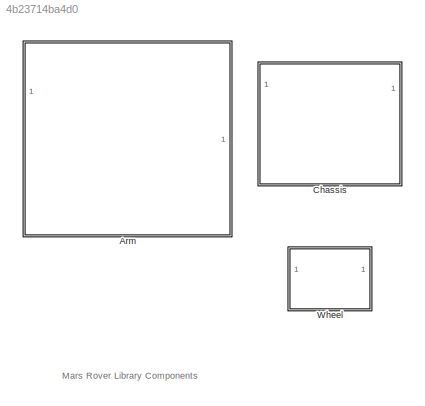
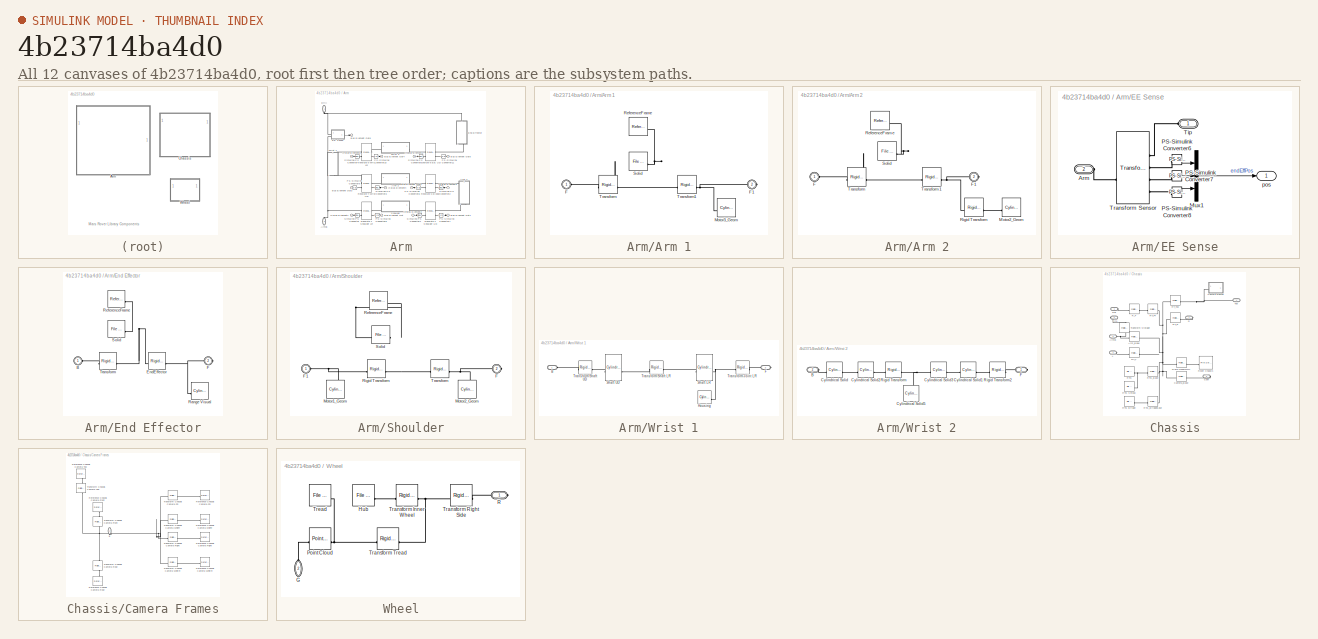
[diagram: thumbnail index - all 12 canvases of the model, root first then tree order]
MODEL slx_4b23714ba4d0
KIND library
CONFIG AbsTol = auto
CONFIG EnableMultiTasking = off
CONFIG FixedStep = auto
CONFIG MaxStep = auto
CONFIG MinStep = auto
CONFIG RelTol = 1e-3
CONFIG SampleTimeConstraint = Unconstrained
CONFIG SolverName = VariableStepAuto
CONFIG StartTime = 0.0
CONFIG StopTime = 10.0
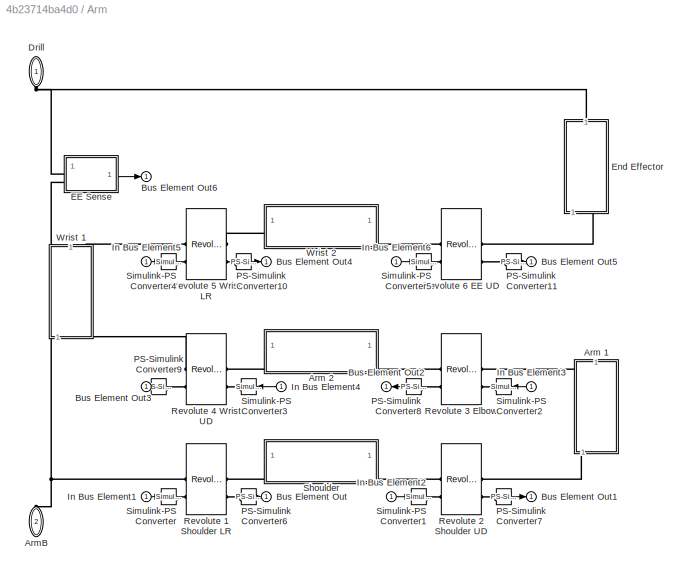
BLOCK [SubSystem] Arm
BLOCK [SubSystem] Arm/Arm 1
  NameLocation = left
BLOCK [PMIOPort] Arm/Arm 1/F
  Side = Left
BLOCK [PMIOPort] Arm/Arm 1/F1
  Port = 2
  Side = Right
BLOCK [Reference] Arm/Arm 1/Motor3_Geom  REF=sm_lib/Body Elements/Cylindrical Solid
  SourceBlock = sm_lib/Body Elements/Cylindrical Solid
  SourceType = Cylindrical Solid
BLOCK [Reference] Arm/Arm 1/ReferenceFrame  REF=sm_lib/Frames and
Transforms/Reference
Frame
  SourceBlock = sm_lib/Frames and\nTransforms/Reference\nFrame
  SourceType = Reference\nFrame
BLOCK [Reference] Arm/Arm 1/Solid  REF=sm_lib/Body Elements/File Solid
  SourceBlock = sm_lib/Body Elements/File Solid
  SourceType = File Solid
BLOCK [Reference] Arm/Arm 1/Transform  REF=sm_lib/Frames and
Transforms/Rigid
Transform
  SourceBlock = sm_lib/Frames and\nTransforms/Rigid\nTransform
  SourceType = Rigid\nTransform
BLOCK [Reference] Arm/Arm 1/Transform1  REF=sm_lib/Frames and
Transforms/Rigid
Transform
  SourceBlock = sm_lib/Frames and\nTransforms/Rigid\nTransform
  SourceType = Rigid\nTransform
BLOCK [SubSystem] Arm/Arm 2
  NameLocation = top
BLOCK [PMIOPort] Arm/Arm 2/F
  Side = Left
BLOCK [PMIOPort] Arm/Arm 2/F1
  Port = 2
  Side = Right
BLOCK [Reference] Arm/Arm 2/Motor2_Geom  REF=sm_lib/Body Elements/Cylindrical Solid
  SourceBlock = sm_lib/Body Elements/Cylindrical Solid
  SourceType = Cylindrical Solid
BLOCK [Reference] Arm/Arm 2/ReferenceFrame  REF=sm_lib/Frames and
Transforms/Reference
Frame
  SourceBlock = sm_lib/Frames and\nTransforms/Reference\nFrame
  SourceType = Reference\nFrame
BLOCK [Reference] Arm/Arm 2/Rigid Transform  REF=sm_lib/Frames and
Transforms/Rigid
Transform
  SourceBlock = sm_lib/Frames and\nTransforms/Rigid\nTransform
  SourceType = Rigid\nTransform
BLOCK [Reference] Arm/Arm 2/Solid  REF=sm_lib/Body Elements/File Solid
  SourceBlock = sm_lib/Body Elements/File Solid
  SourceType = File Solid
BLOCK [Reference] Arm/Arm 2/Transform  REF=sm_lib/Frames and
Transforms/Rigid
Transform
  SourceBlock = sm_lib/Frames and\nTransforms/Rigid\nTransform
  SourceType = Rigid\nTransform
BLOCK [Reference] Arm/Arm 2/Transform1  REF=sm_lib/Frames and
Transforms/Rigid
Transform
  SourceBlock = sm_lib/Frames and\nTransforms/Rigid\nTransform
  SourceType = Rigid\nTransform
BLOCK [PMIOPort] Arm/ArmB
  NameLocation = right
  Port = 2
  Side = Left
BLOCK [Outport] Arm/Bus Element Out
BLOCK [Outport] Arm/Bus Element Out1
BLOCK [Outport] Arm/Bus Element Out2
BLOCK [Outport] Arm/Bus Element Out3
BLOCK [Outport] Arm/Bus Element Out4
BLOCK [Outport] Arm/Bus Element Out5
BLOCK [Outport] Arm/Bus Element Out6
BLOCK [PMIOPort] Arm/Drill
  NameLocation = right
  Side = Left
BLOCK [SubSystem] Arm/EE Sense
BLOCK [PMIOPort] Arm/EE Sense/Arm
  Port = 2
  Side = Left
BLOCK [Mux] Arm/EE Sense/Mux1
  DisplayOption = bar
  Inputs = 3
BLOCK [Reference] Arm/EE Sense/PS-Simulink Converter6  REF=nesl_utility/PS-Simulink
Converter
  SourceBlock = nesl_utility/PS-Simulink\nConverter
  SourceType = PS-Simulink\nConverter
BLOCK [Reference] Arm/EE Sense/PS-Simulink Converter7  REF=nesl_utility/PS-Simulink
Converter
  SourceBlock = nesl_utility/PS-Simulink\nConverter
  SourceType = PS-Simulink\nConverter
BLOCK [Reference] Arm/EE Sense/PS-Simulink Converter8  REF=nesl_utility/PS-Simulink
Converter
  SourceBlock = nesl_utility/PS-Simulink\nConverter
  SourceType = PS-Simulink\nConverter
BLOCK [PMIOPort] Arm/EE Sense/Tip
  Side = Left
BLOCK [Reference] Arm/EE Sense/Transform Sensor  REF=sm_lib/Frames and
Transforms/Transform
Sensor
  SourceBlock = sm_lib/Frames and\nTransforms/Transform\nSensor
  SourceType = Transform\nSensor
BLOCK [Outport] Arm/EE Sense/pos
BLOCK [SubSystem] Arm/End Effector
  NameLocation = left
BLOCK [PMIOPort] Arm/End Effector/B
  Side = Left
BLOCK [Reference] Arm/End Effector/EndEffector  REF=sm_lib/Frames and
Transforms/Rigid
Transform
  SourceBlock = sm_lib/Frames and\nTransforms/Rigid\nTransform
  SourceType = Rigid\nTransform
BLOCK [PMIOPort] Arm/End Effector/F
  Port = 2
  Side = Right
BLOCK [Reference] Arm/End Effector/Range Visual  REF=sm_lib/Body Elements/Cylindrical Solid
  SourceBlock = sm_lib/Body Elements/Cylindrical Solid
  SourceType = Cylindrical Solid
BLOCK [Reference] Arm/End Effector/ReferenceFrame  REF=sm_lib/Frames and
Transforms/Reference
Frame
  SourceBlock = sm_lib/Frames and\nTransforms/Reference\nFrame
  SourceType = Reference\nFrame
BLOCK [Reference] Arm/End Effector/Solid  REF=sm_lib/Body Elements/File Solid
  SourceBlock = sm_lib/Body Elements/File Solid
  SourceType = File Solid
BLOCK [Reference] Arm/End Effector/Transform  REF=sm_lib/Frames and
Transforms/Rigid
Transform
  SourceBlock = sm_lib/Frames and\nTransforms/Rigid\nTransform
  SourceType = Rigid\nTransform
BLOCK [Inport] Arm/In Bus Element1
BLOCK [Inport] Arm/In Bus Element2
BLOCK [Inport] Arm/In Bus Element3
BLOCK [Inport] Arm/In Bus Element4
BLOCK [Inport] Arm/In Bus Element5
BLOCK [Inport] Arm/In Bus Element6
BLOCK [Reference] Arm/PS-Simulink Converter10  REF=nesl_utility/PS-Simulink
Converter
  SourceBlock = nesl_utility/PS-Simulink\nConverter
  SourceType = PS-Simulink\nConverter
BLOCK [Reference] Arm/PS-Simulink Converter11  REF=nesl_utility/PS-Simulink
Converter
  SourceBlock = nesl_utility/PS-Simulink\nConverter
  SourceType = PS-Simulink\nConverter
BLOCK [Reference] Arm/PS-Simulink Converter6  REF=nesl_utility/PS-Simulink
Converter
  SourceBlock = nesl_utility/PS-Simulink\nConverter
  SourceType = PS-Simulink\nConverter
BLOCK [Reference] Arm/PS-Simulink Converter7  REF=nesl_utility/PS-Simulink
Converter
  SourceBlock = nesl_utility/PS-Simulink\nConverter
  SourceType = PS-Simulink\nConverter
BLOCK [Reference] Arm/PS-Simulink Converter8  REF=nesl_utility/PS-Simulink
Converter
  SourceBlock = nesl_utility/PS-Simulink\nConverter
  SourceType = PS-Simulink\nConverter
BLOCK [Reference] Arm/PS-Simulink Converter9  REF=nesl_utility/PS-Simulink
Converter
  NameLocation = top
  SourceBlock = nesl_utility/PS-Simulink\nConverter
  SourceType = PS-Simulink\nConverter
BLOCK [Reference] Arm/Revolute 1 Shoulder LR  REF=sm_lib/Joints/Revolute Joint
  SourceBlock = sm_lib/Joints/Revolute Joint
  SourceType = Revolute Joint
BLOCK [Reference] Arm/Revolute 2 Shoulder UD  REF=sm_lib/Joints/Revolute Joint
  SourceBlock = sm_lib/Joints/Revolute Joint
  SourceType = Revolute Joint
BLOCK [Reference] Arm/Revolute 3 Elbow  REF=sm_lib/Joints/Revolute Joint
  SourceBlock = sm_lib/Joints/Revolute Joint
  SourceType = Revolute Joint
BLOCK [Reference] Arm/Revolute 4 Wrist UD  REF=sm_lib/Joints/Revolute Joint
  SourceBlock = sm_lib/Joints/Revolute Joint
  SourceType = Revolute Joint
BLOCK [Reference] Arm/Revolute 5 Wrist LR  REF=sm_lib/Joints/Revolute Joint
  SourceBlock = sm_lib/Joints/Revolute Joint
  SourceType = Revolute Joint
BLOCK [Reference] Arm/Revolute 6 EE UD  REF=sm_lib/Joints/Revolute Joint
  SourceBlock = sm_lib/Joints/Revolute Joint
  SourceType = Revolute Joint
BLOCK [SubSystem] Arm/Shoulder
  NameLocation = top
BLOCK [PMIOPort] Arm/Shoulder/F
  Port = 2
  Side = Right
BLOCK [PMIOPort] Arm/Shoulder/F1
  Side = Left
BLOCK [Reference] Arm/Shoulder/Motor1_Geom  REF=sm_lib/Body Elements/Cylindrical Solid
  NameLocation = right
  SourceBlock = sm_lib/Body Elements/Cylindrical Solid
  SourceType = Cylindrical Solid
BLOCK [Reference] Arm/Shoulder/Motor2_Geom  REF=sm_lib/Body Elements/Cylindrical Solid
  NameLocation = right
  SourceBlock = sm_lib/Body Elements/Cylindrical Solid
  SourceType = Cylindrical Solid
BLOCK [Reference] Arm/Shoulder/ReferenceFrame  REF=sm_lib/Frames and
Transforms/Reference
Frame
  SourceBlock = sm_lib/Frames and\nTransforms/Reference\nFrame
  SourceType = Reference\nFrame
BLOCK [Reference] Arm/Shoulder/Rigid Transform  REF=sm_lib/Frames and
Transforms/Rigid
Transform
  SourceBlock = sm_lib/Frames and\nTransforms/Rigid\nTransform
  SourceType = Rigid\nTransform
BLOCK [Reference] Arm/Shoulder/Solid  REF=sm_lib/Body Elements/File Solid
  SourceBlock = sm_lib/Body Elements/File Solid
  SourceType = File Solid
BLOCK [Reference] Arm/Shoulder/Transform  REF=sm_lib/Frames and
Transforms/Rigid
Transform
  SourceBlock = sm_lib/Frames and\nTransforms/Rigid\nTransform
  SourceType = Rigid\nTransform
BLOCK [Reference] Arm/Simulink-PS Converter  REF=nesl_utility/Simulink-PS
Converter
  SourceBlock = nesl_utility/Simulink-PS\nConverter
  SourceType = Simulink-PS\nConverter
BLOCK [Reference] Arm/Simulink-PS Converter1  REF=nesl_utility/Simulink-PS
Converter
  SourceBlock = nesl_utility/Simulink-PS\nConverter
  SourceType = Simulink-PS\nConverter
BLOCK [Reference] Arm/Simulink-PS Converter2  REF=nesl_utility/Simulink-PS
Converter
  SourceBlock = nesl_utility/Simulink-PS\nConverter
  SourceType = Simulink-PS\nConverter
BLOCK [Reference] Arm/Simulink-PS Converter3  REF=nesl_utility/Simulink-PS
Converter
  NameLocation = top
  SourceBlock = nesl_utility/Simulink-PS\nConverter
  SourceType = Simulink-PS\nConverter
BLOCK [Reference] Arm/Simulink-PS Converter4  REF=nesl_utility/Simulink-PS
Converter
  SourceBlock = nesl_utility/Simulink-PS\nConverter
  SourceType = Simulink-PS\nConverter
BLOCK [Reference] Arm/Simulink-PS Converter5  REF=nesl_utility/Simulink-PS
Converter
  SourceBlock = nesl_utility/Simulink-PS\nConverter
  SourceType = Simulink-PS\nConverter
BLOCK [SubSystem] Arm/Wrist 1
  NameLocation = right
BLOCK [PMIOPort] Arm/Wrist 1/B
  Side = Left
BLOCK [PMIOPort] Arm/Wrist 1/F
  Port = 2
  Side = Right
BLOCK [Reference] Arm/Wrist 1/Housing  REF=sm_lib/Body Elements/Cylindrical Solid
  SourceBlock = sm_lib/Body Elements/Cylindrical Solid
  SourceType = Cylindrical Solid
BLOCK [Reference] Arm/Wrist 1/Shaft LR  REF=sm_lib/Body Elements/Cylindrical Solid
  SourceBlock = sm_lib/Body Elements/Cylindrical Solid
  SourceType = Cylindrical Solid
BLOCK [Reference] Arm/Wrist 1/Shaft UD  REF=sm_lib/Body Elements/Cylindrical Solid
  SourceBlock = sm_lib/Body Elements/Cylindrical Solid
  SourceType = Cylindrical Solid
BLOCK [Reference] Arm/Wrist 1/Transform Joint LR  REF=sm_lib/Frames and
Transforms/Rigid
Transform
  SourceBlock = sm_lib/Frames and\nTransforms/Rigid\nTransform
  SourceType = Rigid\nTransform
BLOCK [Reference] Arm/Wrist 1/Transform Shaft LR   REF=sm_lib/Frames and
Transforms/Rigid
Transform
  SourceBlock = sm_lib/Frames and\nTransforms/Rigid\nTransform
  SourceType = Rigid\nTransform
BLOCK [Reference] Arm/Wrist 1/Transform Shaft UD  REF=sm_lib/Frames and
Transforms/Rigid
Transform
  SourceBlock = sm_lib/Frames and\nTransforms/Rigid\nTransform
  SourceType = Rigid\nTransform
BLOCK [SubSystem] Arm/Wrist 2
  NameLocation = top
BLOCK [PMIOPort] Arm/Wrist 2/B
  Port = 2
  Side = Left
BLOCK [Reference] Arm/Wrist 2/Cylindrical Solid  REF=sm_lib/Body Elements/Cylindrical Solid
  SourceBlock = sm_lib/Body Elements/Cylindrical Solid
  SourceType = Cylindrical Solid
BLOCK [Reference] Arm/Wrist 2/Cylindrical Solid1  REF=sm_lib/Body Elements/Cylindrical Solid
  SourceBlock = sm_lib/Body Elements/Cylindrical Solid
  SourceType = Cylindrical Solid
BLOCK [Reference] Arm/Wrist 2/Cylindrical Solid2  REF=sm_lib/Body Elements/Cylindrical Solid
  SourceBlock = sm_lib/Body Elements/Cylindrical Solid
  SourceType = Cylindrical Solid
BLOCK [Reference] Arm/Wrist 2/Cylindrical Solid3  REF=sm_lib/Body Elements/Cylindrical Solid
  SourceBlock = sm_lib/Body Elements/Cylindrical Solid
  SourceType = Cylindrical Solid
BLOCK [Reference] Arm/Wrist 2/Cylindrical Solid5  REF=sm_lib/Body Elements/Cylindrical Solid
  NameLocation = left
  SourceBlock = sm_lib/Body Elements/Cylindrical Solid
  SourceType = Cylindrical Solid
BLOCK [PMIOPort] Arm/Wrist 2/F
  Side = Right
BLOCK [Reference] Arm/Wrist 2/Rigid Transform  REF=sm_lib/Frames and
Transforms/Rigid
Transform
  SourceBlock = sm_lib/Frames and\nTransforms/Rigid\nTransform
  SourceType = Rigid\nTransform
BLOCK [Reference] Arm/Wrist 2/Rigid Transform2  REF=sm_lib/Frames and
Transforms/Rigid
Transform
  SourceBlock = sm_lib/Frames and\nTransforms/Rigid\nTransform
  SourceType = Rigid\nTransform
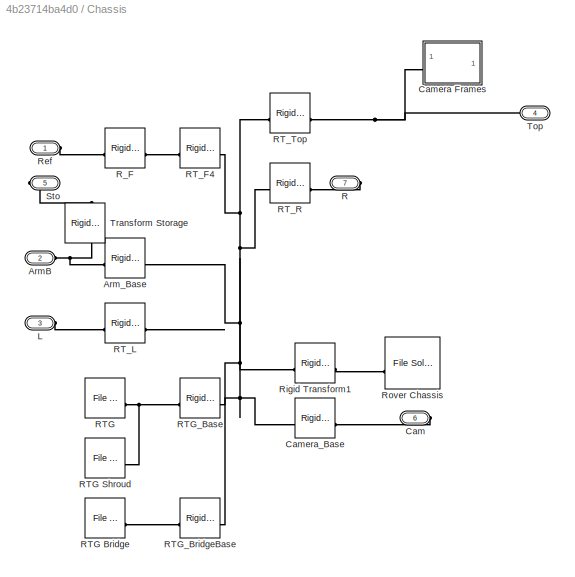
BLOCK [SubSystem] Chassis
  PortSchema = {"entries":[{"content":{"sides":[{"content":{"connectorIds":["LConn1","LConn2","LConn3"]},"type":"ConnectorPlacement.EquallySpacedRectSide","uuid":"18f29509-40f0-486f-8814-4aaf0f3db205"},{"content":{"connectorIds":["RConn1","RConn2","RConn3"],"side":"RIGHT"},"type":"ConnectorPlacement.EquallySpacedRectSide","uuid":"2e7bb58d-7039-4a67-8374-bf875ba97ad5"},{"content":{"connectorIds":["LConn4"],"side"...<+289ch>
BLOCK [PMIOPort] Chassis/ArmB
  Port = 2
  Side = Left
BLOCK [Reference] Chassis/Arm_Base  REF=sm_lib/Frames and
Transforms/Rigid
Transform
  SourceBlock = sm_lib/Frames and\nTransforms/Rigid\nTransform
  SourceType = Rigid\nTransform
BLOCK [PMIOPort] Chassis/Cam
  Port = 6
  Side = Right
BLOCK [SubSystem] Chassis/Camera Frames
BLOCK [PMIOPort] Chassis/Camera Frames/B
  NameLocation = left
  Side = Left
BLOCK [Reference] Chassis/Camera Frames/Reference Chassis Camera FR  REF=sm_lib/Frames and
Transforms/Reference
Frame
  SourceBlock = sm_lib/Frames and\nTransforms/Reference\nFrame
  SourceType = Reference\nFrame
BLOCK [Reference] Chassis/Camera Frames/Reference Chassis Camera Front  REF=sm_lib/Frames and
Transforms/Reference
Frame
  NameLocation = right
  SourceBlock = sm_lib/Frames and\nTransforms/Reference\nFrame
  SourceType = Reference\nFrame
BLOCK [Reference] Chassis/Camera Frames/Reference Chassis Camera Rear  REF=sm_lib/Frames and
Transforms/Reference
Frame
  NameLocation = right
  SourceBlock = sm_lib/Frames and\nTransforms/Reference\nFrame
  SourceType = Reference\nFrame
BLOCK [Reference] Chassis/Camera Frames/Reference Chassis Camera Right  REF=sm_lib/Frames and
Transforms/Reference
Frame
  SourceBlock = sm_lib/Frames and\nTransforms/Reference\nFrame
  SourceType = Reference\nFrame
BLOCK [Reference] Chassis/Camera Frames/Reference Chassis Camera Top  REF=sm_lib/Frames and
Transforms/Reference
Frame
  NameLocation = right
  SourceBlock = sm_lib/Frames and\nTransforms/Reference\nFrame
  SourceType = Reference\nFrame
BLOCK [Reference] Chassis/Camera Frames/Reference Chassis Camera WhlFR  REF=sm_lib/Frames and
Transforms/Reference
Frame
  SourceBlock = sm_lib/Frames and\nTransforms/Reference\nFrame
  SourceType = Reference\nFrame
BLOCK [Reference] Chassis/Camera Frames/Reference Chassis Camera WhlRR  REF=sm_lib/Frames and
Transforms/Reference
Frame
  SourceBlock = sm_lib/Frames and\nTransforms/Reference\nFrame
  SourceType = Reference\nFrame
BLOCK [Reference] Chassis/Camera Frames/Transform Chassis Camera FR  REF=sm_lib/Frames and
Transforms/Rigid
Transform
  SourceBlock = sm_lib/Frames and\nTransforms/Rigid\nTransform
  SourceType = Rigid\nTransform
BLOCK [Reference] Chassis/Camera Frames/Transform Chassis Camera Front  REF=sm_lib/Frames and
Transforms/Rigid
Transform
  NameLocation = right
  SourceBlock = sm_lib/Frames and\nTransforms/Rigid\nTransform
  SourceType = Rigid\nTransform
BLOCK [Reference] Chassis/Camera Frames/Transform Chassis Camera Rear  REF=sm_lib/Frames and
Transforms/Rigid
Transform
  NameLocation = right
  SourceBlock = sm_lib/Frames and\nTransforms/Rigid\nTransform
  SourceType = Rigid\nTransform
BLOCK [Reference] Chassis/Camera Frames/Transform Chassis Camera Right   REF=sm_lib/Frames and
Transforms/Rigid
Transform
  SourceBlock = sm_lib/Frames and\nTransforms/Rigid\nTransform
  SourceType = Rigid\nTransform
BLOCK [Reference] Chassis/Camera Frames/Transform Chassis Camera Top  REF=sm_lib/Frames and
Transforms/Rigid
Transform
  NameLocation = right
  SourceBlock = sm_lib/Frames and\nTransforms/Rigid\nTransform
  SourceType = Rigid\nTransform
BLOCK [Reference] Chassis/Camera Frames/Transform Chassis Camera WhlFR  REF=sm_lib/Frames and
Transforms/Rigid
Transform
  SourceBlock = sm_lib/Frames and\nTransforms/Rigid\nTransform
  SourceType = Rigid\nTransform
BLOCK [Reference] Chassis/Camera Frames/Transform Chassis Camera WhlRR  REF=sm_lib/Frames and
Transforms/Rigid
Transform
  SourceBlock = sm_lib/Frames and\nTransforms/Rigid\nTransform
  SourceType = Rigid\nTransform
BLOCK [Reference] Chassis/Camera_Base  REF=sm_lib/Frames and
Transforms/Rigid
Transform
  SourceBlock = sm_lib/Frames and\nTransforms/Rigid\nTransform
  SourceType = Rigid\nTransform
BLOCK [PMIOPort] Chassis/L
  NameLocation = top
  Port = 3
  Side = Left
BLOCK [PMIOPort] Chassis/R
  Port = 7
  Side = Right
BLOCK [Reference] Chassis/RTG  REF=sm_lib/Body Elements/File Solid
  SourceBlock = sm_lib/Body Elements/File Solid
  SourceType = File Solid
BLOCK [Reference] Chassis/RTG Bridge  REF=sm_lib/Body Elements/File Solid
  SourceBlock = sm_lib/Body Elements/File Solid
  SourceType = File Solid
BLOCK [Reference] Chassis/RTG Shroud  REF=sm_lib/Body Elements/File Solid
  SourceBlock = sm_lib/Body Elements/File Solid
  SourceType = File Solid
BLOCK [Reference] Chassis/RTG_Base  REF=sm_lib/Frames and
Transforms/Rigid
Transform
  SourceBlock = sm_lib/Frames and\nTransforms/Rigid\nTransform
  SourceType = Rigid\nTransform
BLOCK [Reference] Chassis/RTG_BridgeBase  REF=sm_lib/Frames and
Transforms/Rigid
Transform
  SourceBlock = sm_lib/Frames and\nTransforms/Rigid\nTransform
  SourceType = Rigid\nTransform
BLOCK [Reference] Chassis/RT_F4  REF=sm_lib/Frames and
Transforms/Rigid
Transform
  SourceBlock = sm_lib/Frames and\nTransforms/Rigid\nTransform
  SourceType = Rigid\nTransform
BLOCK [Reference] Chassis/RT_L  REF=sm_lib/Frames and
Transforms/Rigid
Transform
  SourceBlock = sm_lib/Frames and\nTransforms/Rigid\nTransform
  SourceType = Rigid\nTransform
BLOCK [Reference] Chassis/RT_R  REF=sm_lib/Frames and
Transforms/Rigid
Transform
  SourceBlock = sm_lib/Frames and\nTransforms/Rigid\nTransform
  SourceType = Rigid\nTransform
BLOCK [Reference] Chassis/RT_Top  REF=sm_lib/Frames and
Transforms/Rigid
Transform
  SourceBlock = sm_lib/Frames and\nTransforms/Rigid\nTransform
  SourceType = Rigid\nTransform
BLOCK [Reference] Chassis/R_F  REF=sm_lib/Frames and
Transforms/Rigid
Transform
  SourceBlock = sm_lib/Frames and\nTransforms/Rigid\nTransform
  SourceType = Rigid\nTransform
BLOCK [PMIOPort] Chassis/Ref
  Side = Left
BLOCK [Reference] Chassis/Rigid Transform1  REF=sm_lib/Frames and
Transforms/Rigid
Transform
  NameLocation = top
  SourceBlock = sm_lib/Frames and\nTransforms/Rigid\nTransform
  SourceType = Rigid\nTransform
BLOCK [Reference] Chassis/Rover Chassis  REF=sm_lib/Body Elements/File Solid
  SourceBlock = sm_lib/Body Elements/File Solid
  SourceType = File Solid
BLOCK [PMIOPort] Chassis/Sto
  Port = 5
  Side = Right
BLOCK [PMIOPort] Chassis/Top
  Port = 4
  Side = Left
BLOCK [Reference] Chassis/Transform Storage  REF=sm_lib/Frames and
Transforms/Rigid
Transform
  NameLocation = left
  SourceBlock = sm_lib/Frames and\nTransforms/Rigid\nTransform
  SourceType = Rigid\nTransform
BLOCK [SubSystem] Wheel
BLOCK [PMIOPort] Wheel/G
  NameLocation = right
  Port = 2
  Side = Left
BLOCK [Reference] Wheel/Hub  REF=sm_lib/Body Elements/File Solid
  SourceBlock = sm_lib/Body Elements/File Solid
  SourceType = File Solid
BLOCK [Reference] Wheel/Point Cloud  REF=sm_lib/Curves and Surfaces/Point Cloud
  SourceBlock = sm_lib/Curves and Surfaces/Point Cloud
  SourceType = Point Cloud
BLOCK [PMIOPort] Wheel/R
  Side = Right
BLOCK [Reference] Wheel/Transform Inner Wheel  REF=sm_lib/Frames and
Transforms/Rigid
Transform
  SourceBlock = sm_lib/Frames and\nTransforms/Rigid\nTransform
  SourceType = Rigid\nTransform
BLOCK [Reference] Wheel/Transform Right Side  REF=sm_lib/Frames and
Transforms/Rigid
Transform
  SourceBlock = sm_lib/Frames and\nTransforms/Rigid\nTransform
  SourceType = Rigid\nTransform
BLOCK [Reference] Wheel/Transform Tread  REF=sm_lib/Frames and
Transforms/Rigid
Transform
  SourceBlock = sm_lib/Frames and\nTransforms/Rigid\nTransform
  SourceType = Rigid\nTransform
BLOCK [Reference] Wheel/Tread  REF=sm_lib/Body Elements/File Solid
  SourceBlock = sm_lib/Body Elements/File Solid
  SourceType = File Solid
ANNOTATION (root): Mars Rover Library Components
LINE Arm/EE Sense/Mux1:1 -> Arm/EE Sense/pos:1
LINE Arm/EE Sense/PS-Simulink Converter6:1 -> Arm/EE Sense/Mux1:1
LINE Arm/EE Sense/PS-Simulink Converter7:1 -> Arm/EE Sense/Mux1:2
LINE Arm/EE Sense/PS-Simulink Converter8:1 -> Arm/EE Sense/Mux1:3
LINE Arm/EE Sense:1 -> Arm/Bus Element Out6:1
LINE Arm/In Bus Element1:1 -> Arm/Simulink-PS Converter:1
LINE Arm/In Bus Element2:1 -> Arm/Simulink-PS Converter1:1
LINE Arm/In Bus Element3:1 -> Arm/Simulink-PS Converter2:1
LINE Arm/In Bus Element4:1 -> Arm/Simulink-PS Converter3:1
LINE Arm/In Bus Element5:1 -> Arm/Simulink-PS Converter4:1
LINE Arm/In Bus Element6:1 -> Arm/Simulink-PS Converter5:1
LINE Arm/PS-Simulink Converter10:1 -> Arm/Bus Element Out4:1
LINE Arm/PS-Simulink Converter11:1 -> Arm/Bus Element Out5:1
LINE Arm/PS-Simulink Converter6:1 -> Arm/Bus Element Out:1
LINE Arm/PS-Simulink Converter7:1 -> Arm/Bus Element Out1:1
LINE Arm/PS-Simulink Converter8:1 -> Arm/Bus Element Out2:1
LINE Arm/PS-Simulink Converter9:1 -> Arm/Bus Element Out3:1
PNET net1: Arm/Arm 1/F1:RConn1 -- Arm/Arm 1/Motor3_Geom:LConn1 -- Arm/Arm 1/Transform1:RConn1
PLINE Arm/Arm 1/F:RConn1 -- Arm/Arm 1/Transform:RConn1
PNET net2: Arm/Arm 1/ReferenceFrame:RConn1 -- Arm/Arm 1/Solid:RConn1 -- Arm/Arm 1/Transform1:LConn1 -- Arm/Arm 1/Transform:LConn1
PLINE Arm/Arm 1:LConn1 -- Arm/Revolute 2 Shoulder UD:RConn1
PLINE Arm/Arm 1:RConn1 -- Arm/Revolute 3 Elbow:LConn1
PNET net3: Arm/Arm 2/F1:RConn1 -- Arm/Arm 2/Rigid Transform:RConn1 -- Arm/Arm 2/Transform1:RConn1
PLINE Arm/Arm 2/F:RConn1 -- Arm/Arm 2/Transform:RConn1
PLINE Arm/Arm 2/Motor2_Geom:LConn1 -- Arm/Arm 2/Rigid Transform:LConn1
PNET net4: Arm/Arm 2/ReferenceFrame:RConn1 -- Arm/Arm 2/Solid:RConn1 -- Arm/Arm 2/Transform1:LConn1 -- Arm/Arm 2/Transform:LConn1
PLINE Arm/Arm 2:LConn1 -- Arm/Revolute 3 Elbow:RConn1
PLINE Arm/Arm 2:RConn1 -- Arm/Revolute 4 Wrist UD:LConn1
PNET net5: Arm/ArmB:RConn1 -- Arm/EE Sense:LConn2 -- Arm/Revolute 1 Shoulder LR:LConn1
PNET net6: Arm/Drill:RConn1 -- Arm/EE Sense:LConn1 -- Arm/End Effector:RConn1
PLINE Arm/EE Sense/Arm:RConn1 -- Arm/EE Sense/Transform Sensor:LConn1
PLINE Arm/EE Sense/PS-Simulink Converter6:LConn1 -- Arm/EE Sense/Transform Sensor:RConn2
PLINE Arm/EE Sense/PS-Simulink Converter7:LConn1 -- Arm/EE Sense/Transform Sensor:RConn3
PLINE Arm/EE Sense/PS-Simulink Converter8:LConn1 -- Arm/EE Sense/Transform Sensor:RConn4
PLINE Arm/EE Sense/Tip:RConn1 -- Arm/EE Sense/Transform Sensor:RConn1
PLINE Arm/End Effector/B:RConn1 -- Arm/End Effector/Transform:RConn1
PNET net7: Arm/End Effector/EndEffector:LConn1 -- Arm/End Effector/ReferenceFrame:RConn1 -- Arm/End Effector/Solid:RConn1 -- Arm/End Effector/Transform:LConn1
PNET net8: Arm/End Effector/EndEffector:RConn1 -- Arm/End Effector/F:RConn1 -- Arm/End Effector/Range Visual:RConn1
PLINE Arm/End Effector:LConn1 -- Arm/Revolute 6 EE UD:RConn1
PLINE Arm/PS-Simulink Converter10:LConn1 -- Arm/Revolute 5 Wrist LR:RConn2
PLINE Arm/PS-Simulink Converter11:LConn1 -- Arm/Revolute 6 EE UD:RConn2
PLINE Arm/PS-Simulink Converter6:LConn1 -- Arm/Revolute 1 Shoulder LR:RConn2
PLINE Arm/PS-Simulink Converter7:LConn1 -- Arm/Revolute 2 Shoulder UD:RConn2
PLINE Arm/PS-Simulink Converter8:LConn1 -- Arm/Revolute 3 Elbow:RConn2
PLINE Arm/PS-Simulink Converter9:LConn1 -- Arm/Revolute 4 Wrist UD:RConn2
PLINE Arm/Revolute 1 Shoulder LR:LConn2 -- Arm/Simulink-PS Converter:RConn1
PLINE Arm/Revolute 1 Shoulder LR:RConn1 -- Arm/Shoulder:LConn1
PLINE Arm/Revolute 2 Shoulder UD:LConn1 -- Arm/Shoulder:RConn1
PLINE Arm/Revolute 2 Shoulder UD:LConn2 -- Arm/Simulink-PS Converter1:RConn1
PLINE Arm/Revolute 3 Elbow:LConn2 -- Arm/Simulink-PS Converter2:RConn1
PLINE Arm/Revolute 4 Wrist UD:LConn2 -- Arm/Simulink-PS Converter3:RConn1
PLINE Arm/Revolute 4 Wrist UD:RConn1 -- Arm/Wrist 1:LConn1
PLINE Arm/Revolute 5 Wrist LR:LConn1 -- Arm/Wrist 1:RConn1
PLINE Arm/Revolute 5 Wrist LR:LConn2 -- Arm/Simulink-PS Converter4:RConn1
PLINE Arm/Revolute 5 Wrist LR:RConn1 -- Arm/Wrist 2:LConn1
PLINE Arm/Revolute 6 EE UD:LConn1 -- Arm/Wrist 2:RConn1
PLINE Arm/Revolute 6 EE UD:LConn2 -- Arm/Simulink-PS Converter5:RConn1
PNET net9: Arm/Shoulder/F1:RConn1 -- Arm/Shoulder/Motor1_Geom:RConn1 -- Arm/Shoulder/Rigid Transform:RConn1
PNET net10: Arm/Shoulder/F:RConn1 -- Arm/Shoulder/Motor2_Geom:LConn1 -- Arm/Shoulder/Transform:RConn1
PNET net11: Arm/Shoulder/ReferenceFrame:RConn1 -- Arm/Shoulder/Rigid Transform:LConn1 -- Arm/Shoulder/Solid:RConn1 -- Arm/Shoulder/Transform:LConn1
PLINE Arm/Wrist 1/B:RConn1 -- Arm/Wrist 1/Transform Shaft UD:LConn1
PLINE Arm/Wrist 1/F:RConn1 -- Arm/Wrist 1/Transform Joint LR:RConn1
PNET net12: Arm/Wrist 1/Housing:RConn1 -- Arm/Wrist 1/Shaft LR:LConn1 -- Arm/Wrist 1/Transform Joint LR:LConn1
PLINE Arm/Wrist 1/Shaft LR:RConn1 -- Arm/Wrist 1/Transform Shaft LR :RConn1
PLINE Arm/Wrist 1/Shaft UD:LConn1 -- Arm/Wrist 1/Transform Shaft UD:RConn1
PLINE Arm/Wrist 1/Shaft UD:RConn1 -- Arm/Wrist 1/Transform Shaft LR :LConn1
PLINE Arm/Wrist 2/B:RConn1 -- Arm/Wrist 2/Cylindrical Solid:LConn1
PLINE Arm/Wrist 2/Cylindrical Solid1:LConn1 -- Arm/Wrist 2/Cylindrical Solid3:RConn1
PLINE Arm/Wrist 2/Cylindrical Solid1:RConn1 -- Arm/Wrist 2/Rigid Transform2:LConn1
PLINE Arm/Wrist 2/Cylindrical Solid2:LConn1 -- Arm/Wrist 2/Cylindrical Solid:RConn1
PLINE Arm/Wrist 2/Cylindrical Solid2:RConn1 -- Arm/Wrist 2/Rigid Transform:LConn1
PNET net13: Arm/Wrist 2/Cylindrical Solid3:LConn1 -- Arm/Wrist 2/Cylindrical Solid5:LConn1 -- Arm/Wrist 2/Rigid Transform:RConn1
PLINE Arm/Wrist 2/F:RConn1 -- Arm/Wrist 2/Rigid Transform2:RConn1
PNET net14: Chassis/ArmB:RConn1 -- Chassis/Arm_Base:RConn1 -- Chassis/Transform Storage:LConn1
PNET net15: Chassis/Arm_Base:LConn1 -- Chassis/Camera_Base:LConn1 -- Chassis/RTG_Base:LConn1 -- Chassis/RTG_BridgeBase:LConn1 -- Chassis/RT_F4:LConn1 -- Chassis/RT_L:LConn1 -- Chassis/RT_R:LConn1 -- Chassis/RT_Top:LConn1 -- Chassis/Rigid Transform1:RConn1
PLINE Chassis/Cam:RConn1 -- Chassis/Camera_Base:RConn1
PNET net16: Chassis/Camera Frames/B:RConn1 -- Chassis/Camera Frames/Transform Chassis Camera FR:LConn1 -- Chassis/Camera Frames/Transform Chassis Camera Front:LConn1 -- Chassis/Camera Frames/Transform Chassis Camera Rear:LConn1 -- Chassis/Camera Frames/Transform Chassis Camera Right :LConn1 -- Chassis/Camera Frames/Transform Chassis Camera Top:LConn1 -- Chassis/Camera Frames/Transform Chassis Camera WhlFR:LConn1 -- Chassis/Camera Frames/Transform Chassis Camera WhlRR:LConn1
PLINE Chassis/Camera Frames/Reference Chassis Camera FR:RConn1 -- Chassis/Camera Frames/Transform Chassis Camera FR:RConn1
PLINE Chassis/Camera Frames/Reference Chassis Camera Front:RConn1 -- Chassis/Camera Frames/Transform Chassis Camera Front:RConn1
PLINE Chassis/Camera Frames/Reference Chassis Camera Rear:RConn1 -- Chassis/Camera Frames/Transform Chassis Camera Rear:RConn1
PLINE Chassis/Camera Frames/Reference Chassis Camera Right:RConn1 -- Chassis/Camera Frames/Transform Chassis Camera Right :RConn1
PLINE Chassis/Camera Frames/Reference Chassis Camera Top:RConn1 -- Chassis/Camera Frames/Transform Chassis Camera Top:RConn1
PLINE Chassis/Camera Frames/Reference Chassis Camera WhlFR:RConn1 -- Chassis/Camera Frames/Transform Chassis Camera WhlFR:RConn1
PLINE Chassis/Camera Frames/Reference Chassis Camera WhlRR:RConn1 -- Chassis/Camera Frames/Transform Chassis Camera WhlRR:RConn1
PNET net17: Chassis/Camera Frames:LConn1 -- Chassis/RT_Top:RConn1 -- Chassis/Top:RConn1
PLINE Chassis/L:RConn1 -- Chassis/RT_L:RConn1
PLINE Chassis/R:RConn1 -- Chassis/RT_R:RConn1
PLINE Chassis/RTG Bridge:RConn1 -- Chassis/RTG_BridgeBase:RConn1
PNET net18: Chassis/RTG Shroud:RConn1 -- Chassis/RTG:RConn1 -- Chassis/RTG_Base:RConn1
PLINE Chassis/RT_F4:RConn1 -- Chassis/R_F:LConn1
PLINE Chassis/R_F:RConn1 -- Chassis/Ref:RConn1
PLINE Chassis/Rigid Transform1:LConn1 -- Chassis/Rover Chassis:LConn1
PLINE Chassis/Sto:RConn1 -- Chassis/Transform Storage:RConn1
note: PNET lines group multi-terminal physical nets as a canonical sorted terminal list (undirected conserving connections); 2-terminal nets keep the pairwise PLINE form
